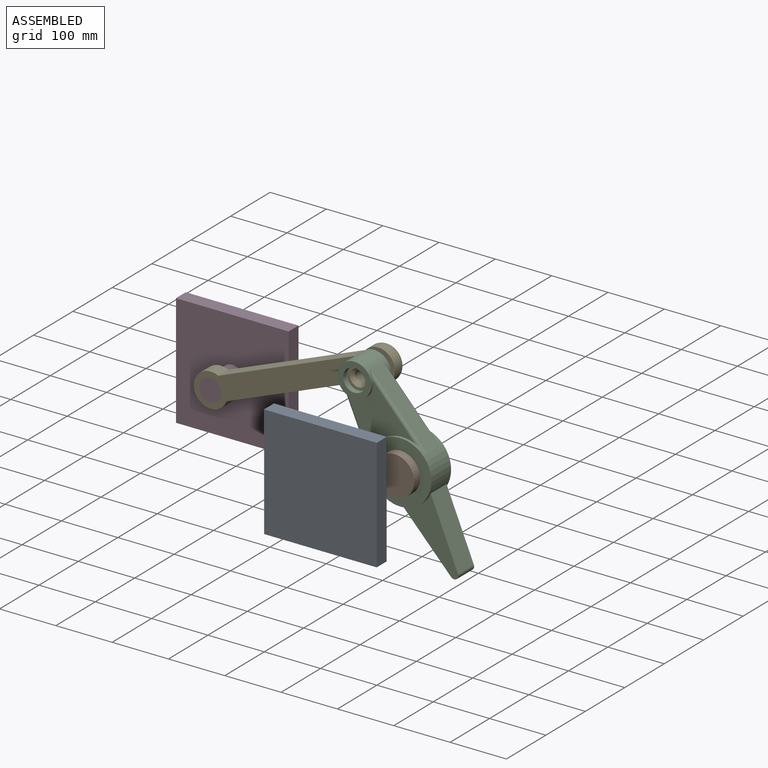
[diagram: assembled view]
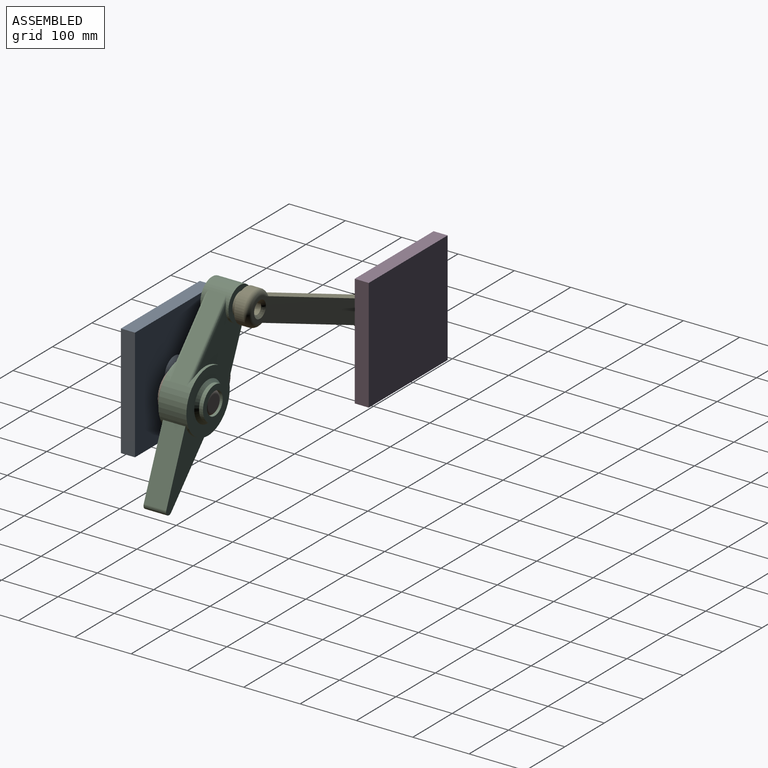
[diagram: assembled view, second angle]
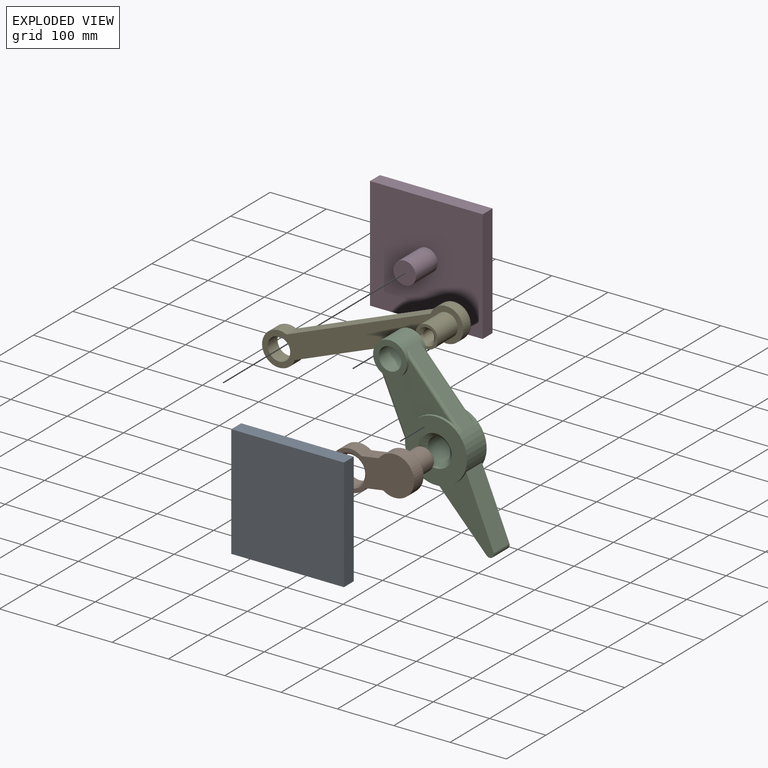
[diagram: exploded view]
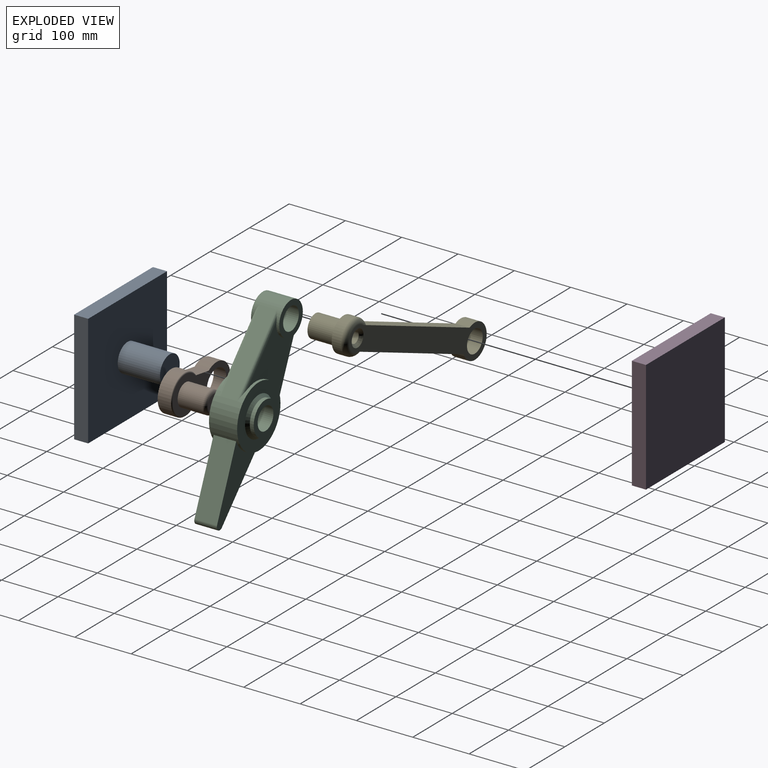
[diagram: exploded view, second angle]
ASSEMBLY  parts=5 mates=4
PART A: 8 faces, bbox 200x100x200 mm
  f0: cylinder r=25mm len=75mm, axis (0,-1,0), area 11781mm2, adj f1,f6
  f1: plane 50x50mm, normal (0,1,0), area 1963.5mm2, adj f0
  f2: plane 200x25mm, normal (0,0,-1), area 5000mm2, adj f3,f5,f6,f7
  f3: plane 200x25mm, normal (1,0,0), area 5000mm2, adj f2,f4,f6,f7
  f4: plane 200x25mm, normal (0,0,1), area 5000mm2, adj f3,f5,f6,f7
  f5: plane 200x25mm, normal (-1,0,0), area 5000mm2, adj f2,f4,f6,f7
  f6: plane 200x200mm, normal (0,1,0), area 38036.5mm2, adj f0,f2,f3,f4,f5
  f7: plane 200x200mm, normal (0,-1,0), area 40000mm2, adj f2,f3,f4,f5
PART B: 12 faces, bbox 152.9x75x75.8 mm
  f0: cylinder r=35mm len=70mm, axis (0,1,0), area 4105.5mm2, adj f1,f4,f5,f6
  f1: plane 33.96x25mm, normal (0,0,-1), area 776.5mm2, adj f0,f2,f5,f6,f10
  f2: cylinder r=35mm len=70mm, axis (0,1,0), area 3777mm2, adj f1,f4,f5,f10
  f3: cylinder r=25mm len=50mm, axis (0,1,0), area 3455.8mm2, adj f6,f11
  f4: plane 33.96x25mm, normal (0,0,1), area 776.5mm2, adj f0,f2,f5,f6,f10
  f5: plane 150x70mm, normal (0,-1,0), area 6059.9mm2, adj f0,f1,f2,f4,f11
  f6: plane 148x70mm, normal (0,1,0), area 4987.9mm2, adj f0,f1,f3,f4,f7,f10
  f7: cylinder r=20mm len=44mm, axis (0,-1,0), area 5529.2mm2, adj f6,f9
  f8: plane 28x28mm, normal (0,1,0), area 615.8mm2, adj f9
  f9: torus R=14mm, axis (0,-1,0), area 1055.2mm2, adj f7,f8
  f10: torus R=33mm, axis (0,-1,0), area 500.4mm2, adj f1,f2,f4,f6
  f11: cone r=25mm half-angle=45deg, axis (0,-1,0), area 706.4mm2, adj f3,f5
PART C: 25 faces, bbox 110x62x356.2 mm
  f0: plane 106.89x90.96mm, normal (0,-1,0), area 5549.8mm2, adj f2,f4,f19,f20
  f1: plane 106.89x90.96mm, normal (0,1,0), area 5549.8mm2, adj f2,f4,f17,f18
  f2: cylinder r=30mm len=60mm, axis (0,1,0), area 5389.1mm2, adj f0,f1,f3,f8,f13,f14,f17,f18
  f3: plane 145.83x30mm, normal (-0.99,0,0.17), area 4437.1mm2, adj f2,f4,f17,f19
  f4: cylinder r=55mm len=110mm, axis (0,1,0), area 8749.2mm2, adj f0,f1,f3,f5,f7,f8,f9,f10
  f5: plane 123.94x40mm, normal (-0.98,0,-0.18), area 5039.7mm2, adj f4,f6,f9,f10
  f6: cylinder r=7.5mm len=40mm, axis (0,1,0), area 858.7mm2, adj f5,f7,f9,f10
  f7: plane 123.34x40mm, normal (0.98,0,-0.18), area 5015.1mm2, adj f4,f6,f9,f10
  f8: plane 145.83x30mm, normal (0.99,0,0.17), area 4437.1mm2, adj f2,f4,f18,f20
  f9: plane 130.1x60mm, normal (0,-1,0), area 4337.2mm2, adj f4,f5,f6,f7
  f10: plane 130.1x60mm, normal (0,1,0), area 4337.2mm2, adj f4,f5,f6,f7
  f11: plane 110x110mm, normal (0,1,0), area 5654.9mm2, adj f4,f23
  f12: plane 110x110mm, normal (0,-1,0), area 7040.3mm2, adj f4,f24
  f13: plane 60x60mm, normal (0,1,0), area 1570.8mm2, adj f2,f15
  f14: plane 60x60mm, normal (0,-1,0), area 1570.8mm2, adj f2,f15
  f15: cylinder r=20mm len=50mm, axis (0,-1,0), area 6283.2mm2, adj f13,f14
  f16: cylinder r=20mm len=54mm, axis (0,-1,0), area 6785.8mm2, adj f22,f24
  f17: cylinder r=5mm len=146.67mm, axis (-0.17,0,-0.99), area 995.5mm2, adj f1,f2,f3,f4
  f18: cylinder r=5mm len=146.67mm, axis (-0.17,0,0.99), area 995.5mm2, adj f1,f2,f4,f8
  f19: cylinder r=5mm len=146.67mm, axis (0.17,0,0.99), area 995.5mm2, adj f0,f2,f3,f4
  f20: cylinder r=5mm len=146.67mm, axis (0.17,0,-0.99), area 995.5mm2, adj f0,f2,f4,f8
  f21: cylinder r=30mm len=60mm, axis (0,-1,0), area 1319.5mm2, adj f22,f23
  f22: plane 60x60mm, normal (0,1,0), area 1570.8mm2, adj f16,f21
  f23: cone r=30mm half-angle=45deg, axis (0,-1,0), area 1443.9mm2, adj f11,f21
  f24: cone r=20mm half-angle=45deg, axis (0,-1,0), area 1706.1mm2, adj f12,f16
PART D: 8 faces, bbox 200x80x200 mm
  f0: cylinder r=20mm len=55mm, axis (0,1,0), area 6911.5mm2, adj f1,f6
  f1: plane 40x40mm, normal (0,-1,0), area 1256.6mm2, adj f0
  f2: plane 200x25mm, normal (0,0,-1), area 5000mm2, adj f3,f5,f6,f7
  f3: plane 200x25mm, normal (1,0,0), area 5000mm2, adj f2,f4,f6,f7
  f4: plane 200x25mm, normal (0,0,1), area 5000mm2, adj f3,f5,f6,f7
  f5: plane 200x25mm, normal (-1,0,0), area 5000mm2, adj f2,f4,f6,f7
  f6: plane 200x200mm, normal (0,-1,0), area 38743.4mm2, adj f0,f2,f3,f4,f5
  f7: plane 200x200mm, normal (0,1,0), area 40000mm2, adj f2,f3,f4,f5
PART E: 13 faces, bbox 382.5x75x64.9 mm
  f0: plane 291.24x25mm, normal (0,0,1), area 6907.3mm2, adj f1,f3,f5,f6,f12
  f1: cylinder r=30mm len=60mm, axis (0,1,0), area 3617.8mm2, adj f0,f2,f5,f6
  f2: plane 291.24x25mm, normal (0,0,-1), area 6907.3mm2, adj f1,f3,f5,f6,f12
  f3: cylinder r=30mm len=60mm, axis (0,1,0), area 2315.4mm2, adj f0,f2,f5,f12
  f4: cylinder r=20mm len=40mm, axis (0,1,0), area 3141.6mm2, adj f5,f6
  f5: plane 380x60mm, normal (0,-1,0), area 13733.7mm2, adj f0,f1,f2,f3,f4,f7
  f6: plane 371x60mm, normal (0,1,0), area 13261.3mm2, adj f0,f1,f2,f4,f11,f12
  f7: cylinder r=20mm len=50mm, axis (0,1,0), area 6283.2mm2, adj f5,f8
  f8: plane 40x40mm, normal (0,-1,0), area 549.8mm2, adj f7,f10
  f9: cylinder r=10mm len=65mm, axis (0,-1,0), area 4084.1mm2, adj f10,f11
  f10: cone r=10mm half-angle=45deg, axis (0,-1,0), area 555.4mm2, adj f8,f9
  f11: cone r=10mm half-angle=45deg, axis (0,1,0), area 555.4mm2, adj f6,f9
  f12: torus R=21mm, axis (0,-1,0), area 1727.1mm2, adj f0,f2,f3,f6
PLACE A t=(125.14,-150.63,-56.06)mm fixed
PLACE B rot(axis=(0,-1,0),9deg) t=(125.14,-50.63,-56.06)mm
PLACE C rot(axis=(0,-1,0),33deg) t=(204.16,-35.63,-43.58)mm
PLACE D t=(125.14,-150.63,-56.06)mm fixed
PLACE E rot(axis=(0,-1,0),21.7deg) t=(-174.86,24.37,-36.06)mm
MATE cylindrical C.f16 <-> B.f2  axis (0,-1,0) through (204.16,-25.63,-43.58)mm
MATE revolute E.f1 <-> D.f0  axis (0,1,0) through (-174.86,-0.63,-36.06)mm
MATE revolute A.f0 <-> B.f0  axis (0,-1,0) through (125.14,-50.63,-56.06)mm
MATE revolute C.f15 <-> E.f3  axis (0,1,0) through (122.47,-10.63,82.23)mm
